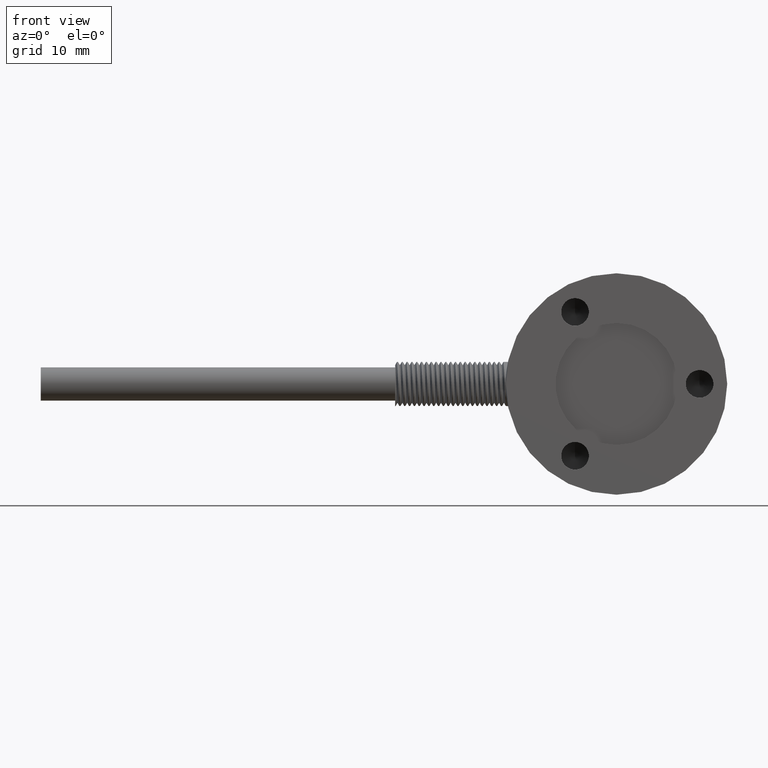
[diagram: clean part render]
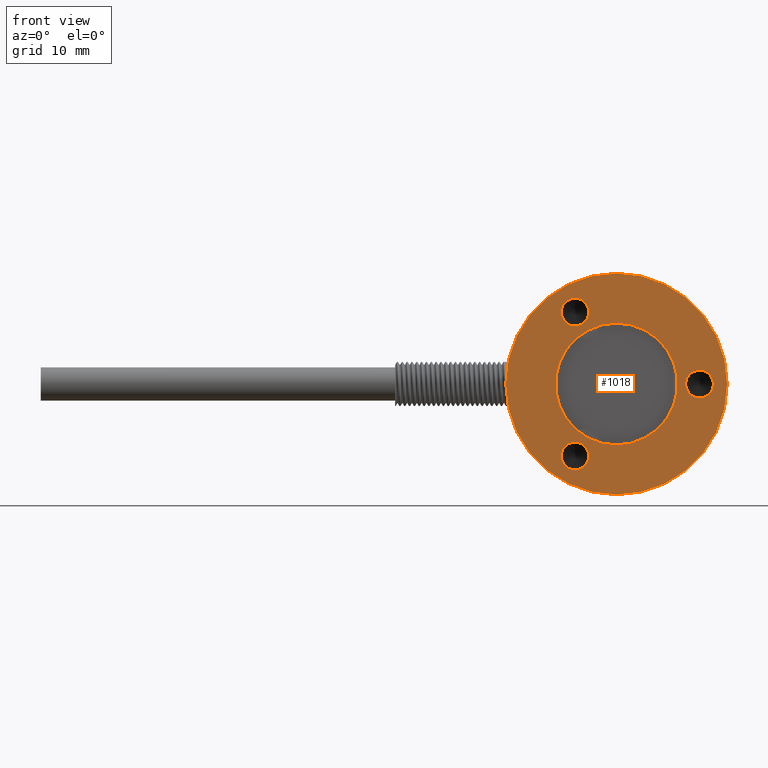
[diagram: same view with one face highlighted and labeled with its STEP entity id]
A machine part, front view. The second image highlights one B-rep face of the part: STEP entity #1018.
In plain terms, the highlighted planar face has unit normal (0, 1, 0).
Its self-contained STEP definition (entity closure, byte-faithful):
#23=PLANE('',#1123);
#31=FACE_BOUND('',#146,.T.);
#32=FACE_BOUND('',#147,.T.);
#33=FACE_BOUND('',#148,.T.);
#34=FACE_BOUND('',#149,.T.);
#87=FACE_OUTER_BOUND('',#145,.T.);
#145=EDGE_LOOP('',(#823,#824));
#146=EDGE_LOOP('',(#825,#826));
#147=EDGE_LOOP('',(#827,#828));
#148=EDGE_LOOP('',(#829,#830));
#149=EDGE_LOOP('',(#831,#832));
#171=CIRCLE('',#1086,1.24999999999999);
#172=CIRCLE('',#1087,1.24999999999999);
#175=CIRCLE('',#1092,1.24999999999999);
#176=CIRCLE('',#1093,1.24999999999999);
#179=CIRCLE('',#1098,1.24999999999999);
#180=CIRCLE('',#1099,1.24999999999999);
#188=CIRCLE('',#1111,5.5);
#189=CIRCLE('',#1112,5.5);
#194=CIRCLE('',#1118,10.);
#195=CIRCLE('',#1119,10.);
#435=VERTEX_POINT('',#3707);
#436=VERTEX_POINT('',#3709);
#440=VERTEX_POINT('',#3720);
#441=VERTEX_POINT('',#3722);
#445=VERTEX_POINT('',#3733);
#446=VERTEX_POINT('',#3735);
#454=VERTEX_POINT('',#3758);
#455=VERTEX_POINT('',#3759);
#460=VERTEX_POINT('',#3772);
#461=VERTEX_POINT('',#3774);
#573=EDGE_CURVE('',#435,#436,#171,.T.);
#574=EDGE_CURVE('',#436,#435,#172,.T.);
#579=EDGE_CURVE('',#440,#441,#175,.T.);
#580=EDGE_CURVE('',#441,#440,#176,.T.);
#585=EDGE_CURVE('',#445,#446,#179,.T.);
#586=EDGE_CURVE('',#446,#445,#180,.T.);
#596=EDGE_CURVE('',#454,#455,#188,.T.);
#597=EDGE_CURVE('',#455,#454,#189,.T.);
#604=EDGE_CURVE('',#460,#461,#194,.T.);
#605=EDGE_CURVE('',#461,#460,#195,.T.);
#823=ORIENTED_EDGE('',*,*,#605,.F.);
#824=ORIENTED_EDGE('',*,*,#604,.F.);
#825=ORIENTED_EDGE('',*,*,#596,.T.);
#826=ORIENTED_EDGE('',*,*,#597,.T.);
#827=ORIENTED_EDGE('',*,*,#574,.F.);
#828=ORIENTED_EDGE('',*,*,#573,.F.);
#829=ORIENTED_EDGE('',*,*,#580,.F.);
#830=ORIENTED_EDGE('',*,*,#579,.F.);
#831=ORIENTED_EDGE('',*,*,#586,.F.);
#832=ORIENTED_EDGE('',*,*,#585,.F.);
#1018=ADVANCED_FACE('',(#87,#31,#32,#33,#34),#23,.F.);
#1086=AXIS2_PLACEMENT_3D('',#3710,#1252,#1253);
#1087=AXIS2_PLACEMENT_3D('',#3711,#1254,#1255);
#1092=AXIS2_PLACEMENT_3D('',#3723,#1266,#1267);
#1093=AXIS2_PLACEMENT_3D('',#3724,#1268,#1269);
#1098=AXIS2_PLACEMENT_3D('',#3736,#1280,#1281);
#1099=AXIS2_PLACEMENT_3D('',#3737,#1282,#1283);
#1111=AXIS2_PLACEMENT_3D('',#3760,#1308,#1309);
#1112=AXIS2_PLACEMENT_3D('',#3761,#1310,#1311);
#1118=AXIS2_PLACEMENT_3D('',#3775,#1324,#1325);
#1119=AXIS2_PLACEMENT_3D('',#3776,#1326,#1327);
#1123=AXIS2_PLACEMENT_3D('',#3949,#1334,#1335);
#1252=DIRECTION('center_axis',(0.,-1.,0.));
#1253=DIRECTION('ref_axis',(0.,0.,-1.));
#1254=DIRECTION('center_axis',(0.,-1.,0.));
#1255=DIRECTION('ref_axis',(0.,0.,-1.));
#1266=DIRECTION('center_axis',(0.,-1.,0.));
#1267=DIRECTION('ref_axis',(0.,0.,-1.));
#1268=DIRECTION('center_axis',(0.,-1.,0.));
#1269=DIRECTION('ref_axis',(0.,0.,-1.));
#1280=DIRECTION('center_axis',(0.,-1.,0.));
#1281=DIRECTION('ref_axis',(0.,0.,-1.));
#1282=DIRECTION('center_axis',(0.,-1.,0.));
#1283=DIRECTION('ref_axis',(0.,0.,-1.));
#1308=DIRECTION('center_axis',(0.,1.,0.));
#1309=DIRECTION('ref_axis',(0.,0.,1.));
#1310=DIRECTION('center_axis',(0.,1.,0.));
#1311=DIRECTION('ref_axis',(0.,0.,1.));
#1324=DIRECTION('center_axis',(0.,1.,0.));
#1325=DIRECTION('ref_axis',(0.,0.,1.));
#1326=DIRECTION('center_axis',(0.,1.,0.));
#1327=DIRECTION('ref_axis',(0.,0.,1.));
#1334=DIRECTION('center_axis',(0.,1.,0.));
#1335=DIRECTION('ref_axis',(0.,0.,1.));
#3707=CARTESIAN_POINT('',(7.5,-1.40222058502372E-15,1.24999999999999));
#3709=CARTESIAN_POINT('',(7.5,-1.40222058502372E-15,-1.24999999999999));
#3710=CARTESIAN_POINT('Origin',(7.5,-1.40222058502372E-15,0.));
#3711=CARTESIAN_POINT('Origin',(7.5,-1.40222058502372E-15,0.));
#3720=CARTESIAN_POINT('',(-3.75000000000003,-1.40222058502372E-15,-5.24519052838328));
#3722=CARTESIAN_POINT('',(-3.75000000000003,-1.40222058502372E-15,-7.74519052838326));
#3723=CARTESIAN_POINT('Origin',(-3.75000000000003,-1.40222058502372E-15,
-6.49519052838327));
#3724=CARTESIAN_POINT('Origin',(-3.75000000000003,-1.40222058502372E-15,
-6.49519052838327));
#3733=CARTESIAN_POINT('',(-3.74999999999994,-1.40222058502372E-15,7.74519052838332));
#3735=CARTESIAN_POINT('',(-3.74999999999994,-1.40222058502372E-15,5.24519052838334));
#3736=CARTESIAN_POINT('Origin',(-3.74999999999994,-1.40222058502372E-15,
6.49519052838333));
#3737=CARTESIAN_POINT('Origin',(-3.74999999999994,-1.40222058502372E-15,
6.49519052838333));
#3758=CARTESIAN_POINT('',(0.,0.,5.5));
#3759=CARTESIAN_POINT('',(-6.73555739531044E-16,0.,-5.5));
#3760=CARTESIAN_POINT('Origin',(0.,0.,0.));
#3761=CARTESIAN_POINT('Origin',(0.,0.,0.));
#3772=CARTESIAN_POINT('',(-1.22464679914735E-15,0.,-10.));
#3774=CARTESIAN_POINT('',(0.,0.,10.));
#3775=CARTESIAN_POINT('Origin',(0.,0.,0.));
#3776=CARTESIAN_POINT('Origin',(0.,0.,0.));
#3949=CARTESIAN_POINT('Origin',(5.5,0.,0.));